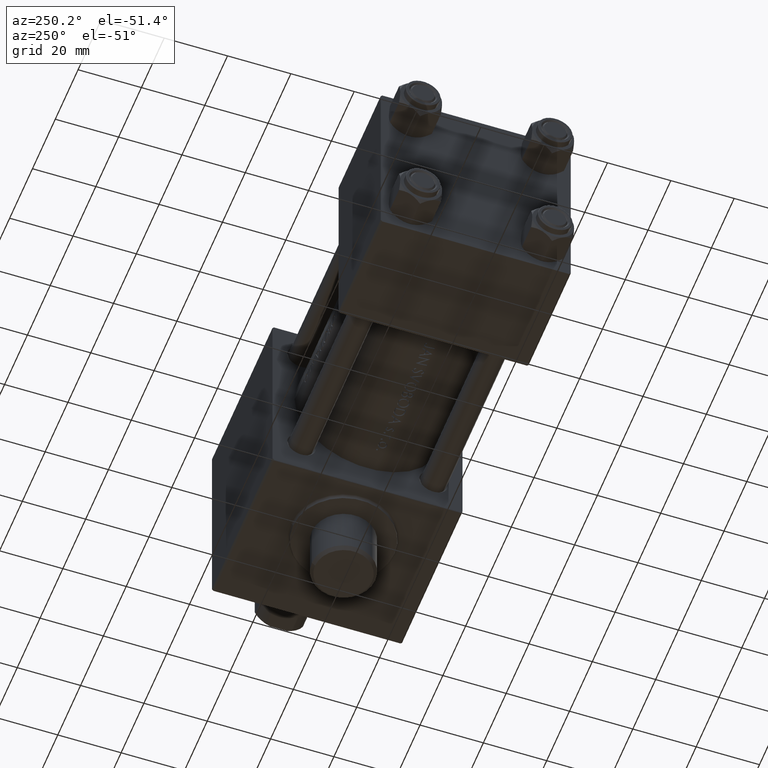
[diagram: clean part render]
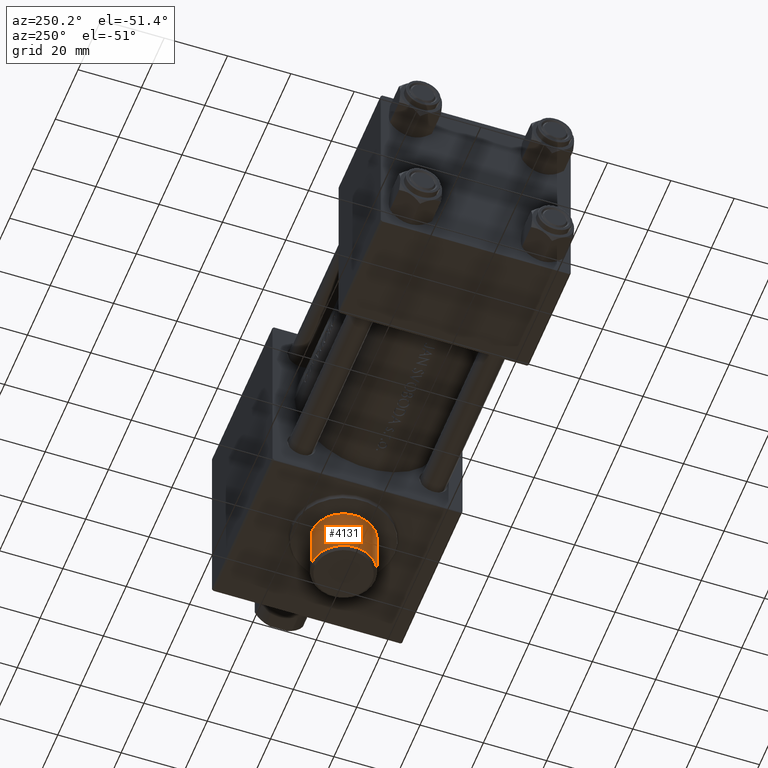
[diagram: same view with one face highlighted and labeled with its STEP entity id]
A machine part, auxiliary view. The second image highlights one B-rep face of the part: STEP entity #4131.
In plain terms, the highlighted cylindrical surface (edge-blend (fillet) strip) has radius 10 mm, axis along (0, 0, 1).
Its self-contained STEP definition (entity closure, byte-faithful):
#161 = CARTESIAN_POINT ( 'NONE',  ( 115.9999999999999858, 48.50000000000000711, 10.00000000000000711 ) ) ;
#2519 = DIRECTION ( 'NONE',  ( -0.000000000000000000, -1.000000000000000000, 8.673617379884036705E-17 ) ) ;
#2737 = VERTEX_POINT ( 'NONE', #25565 ) ;
#4131 = ADVANCED_FACE ( 'NONE', ( #20617 ), #26959, .T. ) ;
#5884 = CARTESIAN_POINT ( 'NONE',  ( 115.9999999999999858, 48.50000000000000711, -1.474514954580286425E-15 ) ) ;
#6043 = LINE ( 'NONE', #34612, #42005 ) ;
#6772 = ORIENTED_EDGE ( 'NONE', *, *, #45125, .F. ) ;
#8031 = CIRCLE ( 'NONE', #40970, 10.00000000000000888 ) ;
#9376 = CARTESIAN_POINT ( 'NONE',  ( 115.9999999999999858, 32.50000000000000711, -8.673617379884042868E-17 ) ) ;
#10775 = VERTEX_POINT ( 'NONE', #16806 ) ;
#11007 = AXIS2_PLACEMENT_3D ( 'NONE', #9376, #44974, #45206 ) ;
#15647 = ORIENTED_EDGE ( 'NONE', *, *, #43921, .T. ) ;
#16806 = CARTESIAN_POINT ( 'NONE',  ( 115.9999999999999858, 47.49999999999995737, 10.00000000000000711 ) ) ;
#17322 = VECTOR ( 'NONE', #17955, 1000.000000000000000 ) ;
#17889 = EDGE_CURVE ( 'NONE', #10775, #30999, #8031, .T. ) ;
#17955 = DIRECTION ( 'NONE',  ( -0.000000000000000000, -1.000000000000000000, 8.673617379884036705E-17 ) ) ;
#20617 = FACE_OUTER_BOUND ( 'NONE', #27876, .T. ) ;
#21080 = DIRECTION ( 'NONE',  ( 0.000000000000000000, 0.000000000000000000, 1.000000000000000000 ) ) ;
#24368 = DIRECTION ( 'NONE',  ( -0.000000000000000000, -1.000000000000000000, 8.673617379884037937E-17 ) ) ;
#24375 = EDGE_CURVE ( 'NONE', #2737, #24573, #40949, .T. ) ;
#24573 = VERTEX_POINT ( 'NONE', #39576 ) ;
#24739 = LINE ( 'NONE', #161, #17322 ) ;
#25565 = CARTESIAN_POINT ( 'NONE',  ( 115.9999999999999858, 32.50000000000000711, 10.00000000000000888 ) ) ;
#26959 = CYLINDRICAL_SURFACE ( 'NONE', #29434, 10.00000000000000888 ) ;
#27650 = DIRECTION ( 'NONE',  ( -0.000000000000000000, -1.000000000000000000, 8.673617379884036705E-17 ) ) ;
#27876 = EDGE_LOOP ( 'NONE', ( #6772, #38078, #15647, #35481 ) ) ;
#29434 = AXIS2_PLACEMENT_3D ( 'NONE', #5884, #27650, #41955 ) ;
#30999 = VERTEX_POINT ( 'NONE', #33036 ) ;
#33036 = CARTESIAN_POINT ( 'NONE',  ( 115.9999999999999858, 47.49999999999995737, -10.00000000000001066 ) ) ;
#34612 = CARTESIAN_POINT ( 'NONE',  ( 115.9999999999999858, 48.50000000000000711, -10.00000000000001066 ) ) ;
#35481 = ORIENTED_EDGE ( 'NONE', *, *, #24375, .F. ) ;
#38078 = ORIENTED_EDGE ( 'NONE', *, *, #17889, .T. ) ;
#39576 = CARTESIAN_POINT ( 'NONE',  ( 115.9999999999999858, 32.50000000000000711, -10.00000000000000888 ) ) ;
#40949 = CIRCLE ( 'NONE', #11007, 10.00000000000000888 ) ;
#40970 = AXIS2_PLACEMENT_3D ( 'NONE', #42879, #24368, #21080 ) ;
#41955 = DIRECTION ( 'NONE',  ( 0.000000000000000000, 0.000000000000000000, -1.000000000000000000 ) ) ;
#42005 = VECTOR ( 'NONE', #2519, 1000.000000000000000 ) ;
#42879 = CARTESIAN_POINT ( 'NONE',  ( 115.9999999999999858, 47.49999999999995737, -1.387778780781441731E-15 ) ) ;
#43921 = EDGE_CURVE ( 'NONE', #30999, #24573, #6043, .T. ) ;
#44974 = DIRECTION ( 'NONE',  ( -0.000000000000000000, -1.000000000000000000, 8.673617379884036705E-17 ) ) ;
#45125 = EDGE_CURVE ( 'NONE', #10775, #2737, #24739, .T. ) ;
#45206 = DIRECTION ( 'NONE',  ( 0.000000000000000000, 0.000000000000000000, -1.000000000000000000 ) ) ;